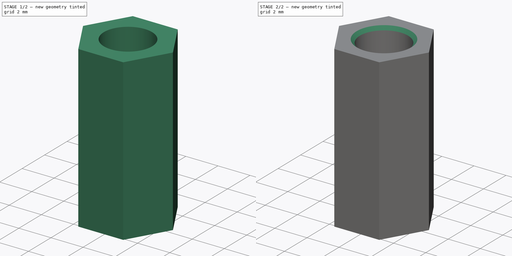
[diagram: build sequence overview — one tinted view per stage of 2, left to right]
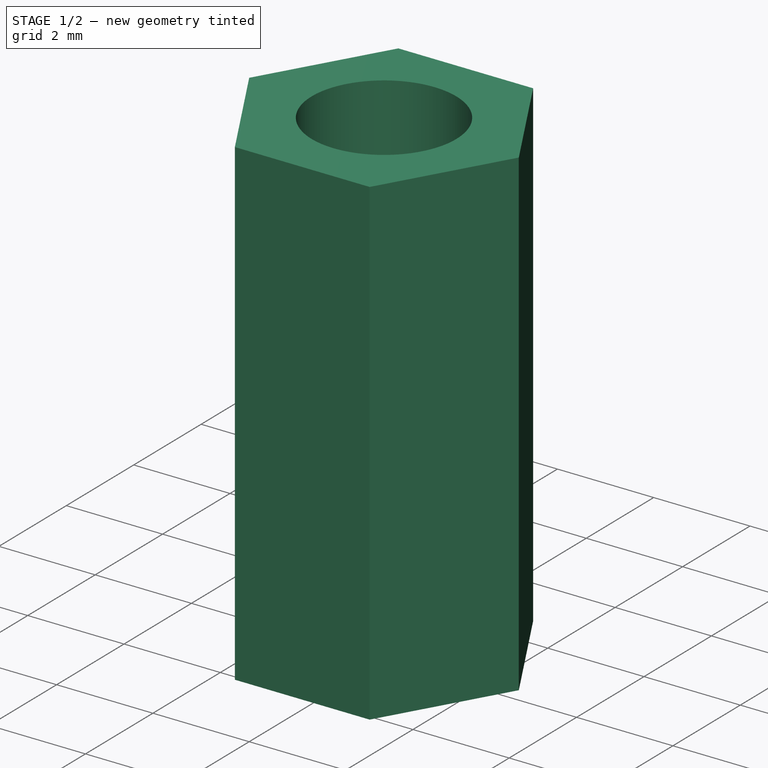
[diagram: stage 1 of 2 — iso view after this stage's code; geometry added in this stage tinted green]
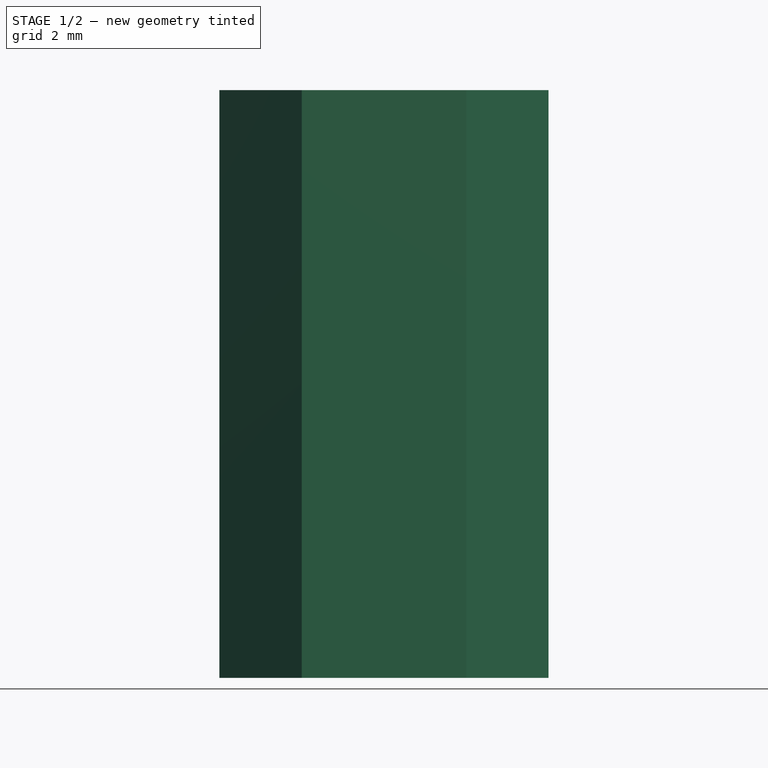
[diagram: stage 1 of 2 — front view after this stage's code; geometry added in this stage tinted green]
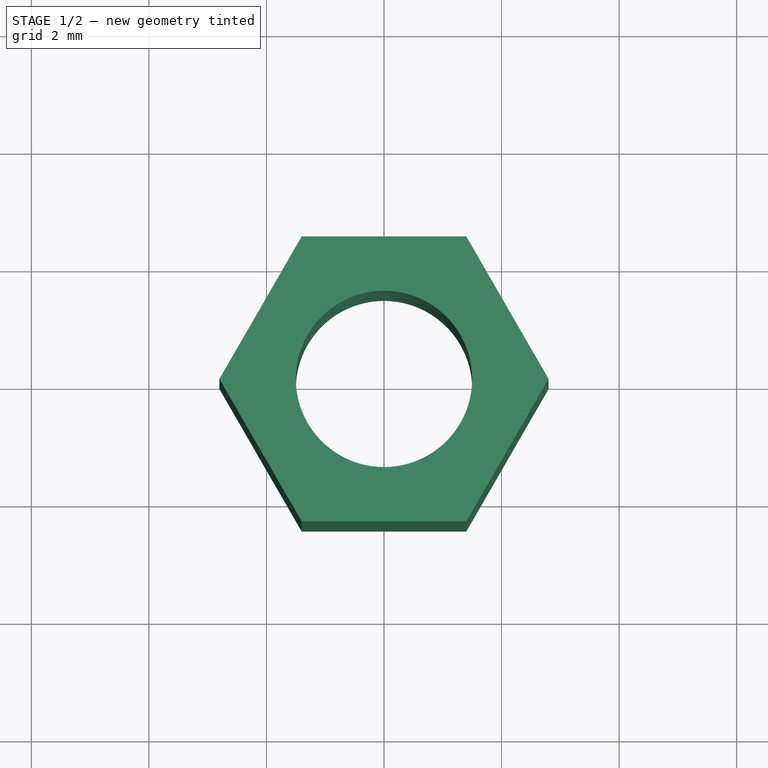
[diagram: stage 1 of 2 — top view after this stage's code; geometry added in this stage tinted green]
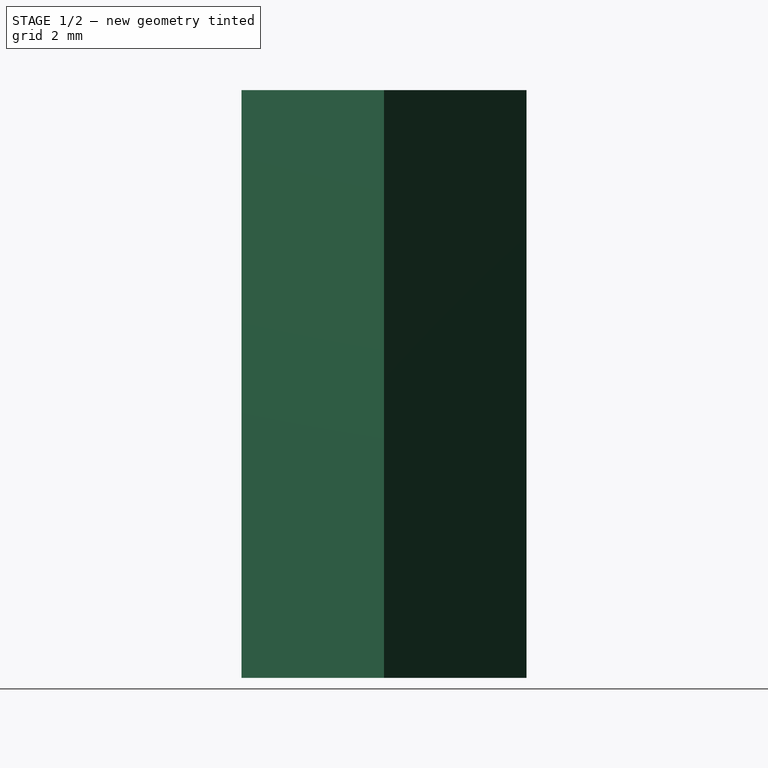
[diagram: stage 1 of 2 — right view after this stage's code; geometry added in this stage tinted green]
FCSTD DOCUMENT  (FreeCAD 0.18R4 (GitTag))
Label: hexStandoffFemaleFemale
License: All rights reserved
LicenseURL: http://en.wikipedia.org/wiki/All_rights_reserved
objects: Sketcher::SketchObject×2, PartDesign::Pad×1, PartDesign::Pocket×1, Spreadsheet::Sheet×1, PartDesign::Chamfer×1, PartDesign::Body×1, App::Part×1
note: 8 computed .brp shape members not serialized (recipe doc carries the construction recipe); baked Part::Feature solids carry a one-line shape summary decoded from their .brp

FEATURE [Sketcher::SketchObject] Sketch
  expr: Constraints[19] = Spreadsheet.B1
  sketch-geometry (7):
    g0: LineSegment StartX=2.8 StartY=0 StartZ=0 EndX=1.4 EndY=2.42487 EndZ=0
    g1: LineSegment StartX=1.4 StartY=2.42487 StartZ=0 EndX=-1.4 EndY=2.42487 EndZ=0
    g2: LineSegment StartX=-1.4 StartY=2.42487 StartZ=0 EndX=-2.8 EndY=-4e-16 EndZ=0
    g3: LineSegment StartX=-2.8 StartY=-4e-16 StartZ=0 EndX=-1.4 EndY=-2.42487 EndZ=0
    g4: LineSegment StartX=-1.4 StartY=-2.42487 StartZ=0 EndX=1.4 EndY=-2.42487 EndZ=0
    g5: LineSegment StartX=1.4 StartY=-2.42487 StartZ=0 EndX=2.8 EndY=0 EndZ=0
    g6: Circle [constr] CenterX=0 CenterY=0 CenterZ=0 NormalX=0 NormalY=0 NormalZ=1 AngleXU=0 Radius=2.8
  constraints (16):
    c: Coincident(g0,g1)
    c: Coincident(g1,g2)
    c: Coincident(g2,g3)
    c: Coincident(g3,g4)
    c: Coincident(g4,g5)
    c: Coincident(g5,g0)
    c: Equal(g0, g1-g5) x5
    c: PointOnObject(g0,g6)
    c: PointOnObject(g1,g6)
    c: PointOnObject(g2,g6)
    c: PointOnObject(g3,g6)
    c: PointOnObject(g4,g6)
    c: PointOnObject(g5,g6)
    c: Coincident(g6,g-1)
    c: PointOnObject(g5,g-1)
    c: Diameter(g6) = 5.6
FEATURE [PartDesign::Pad] Pad
  Length = 10
  Length2 = 100
  Profile = -> Sketch
  Type = 0
  expr: Length = Spreadsheet.B3
FEATURE [Sketcher::SketchObject] Sketch001
  MapMode = 5
  Placement = pos=(0,0,10) rot=(0,0,1;0rad)
  Support = -> [Pad]
  expr: Constraints[1] = Spreadsheet.B2
  sketch-geometry (1):
    g0: Circle CenterX=0 CenterY=0 CenterZ=0 NormalX=0 NormalY=0 NormalZ=1 AngleXU=0 Radius=1.5
  constraints (2):
    c: Coincident(g0,g-1)
    c: Diameter(g0) = 3
FEATURE [PartDesign::Pocket] Pocket
  BaseFeature = -> Pad
  Length = 5
  Length2 = 100
  Profile = -> Sketch001
  Type = 1
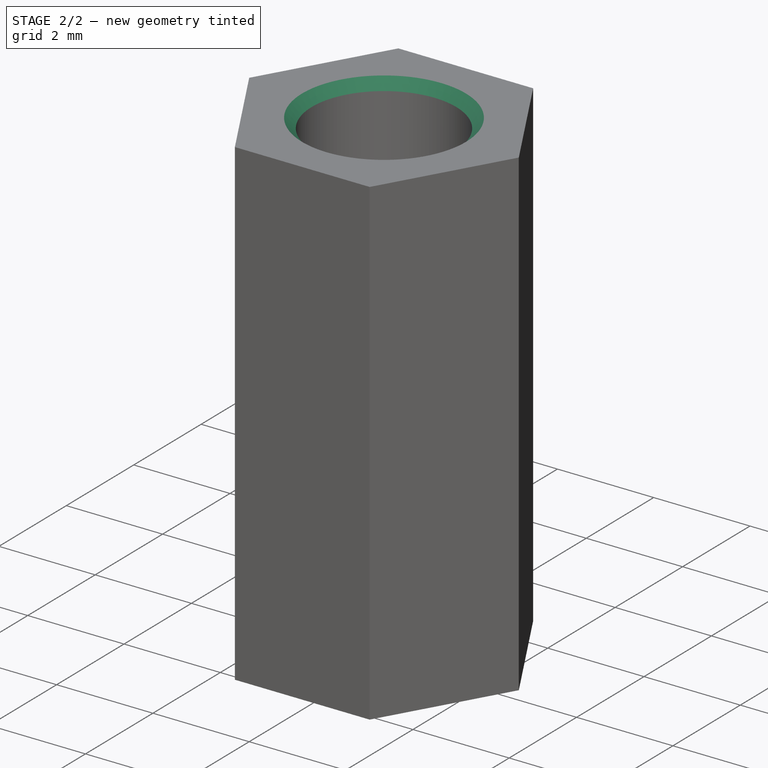
[diagram: stage 2 of 2 — iso view after this stage's code; geometry added in this stage tinted green]
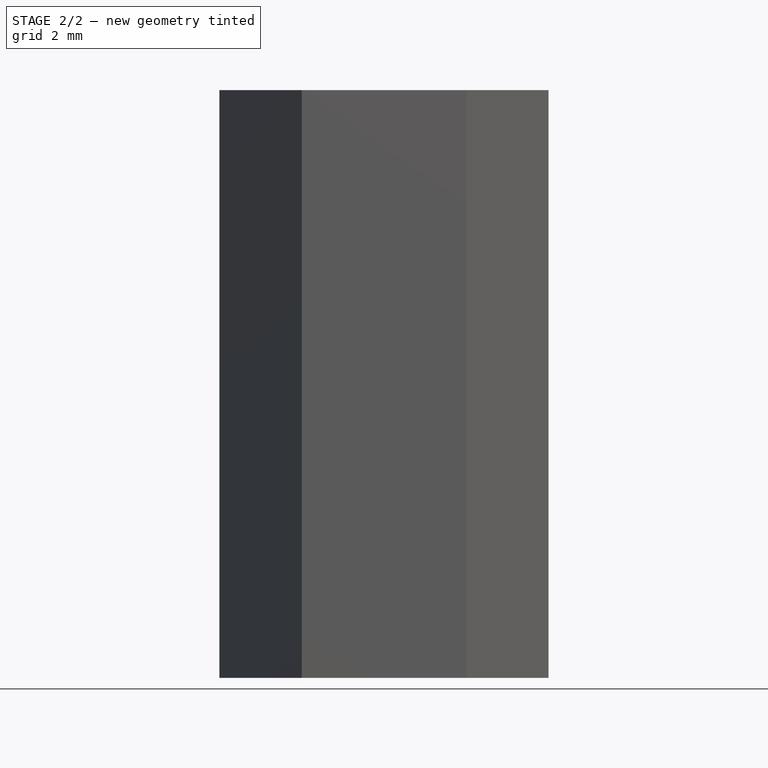
[diagram: stage 2 of 2 — front view after this stage's code; geometry added in this stage tinted green]
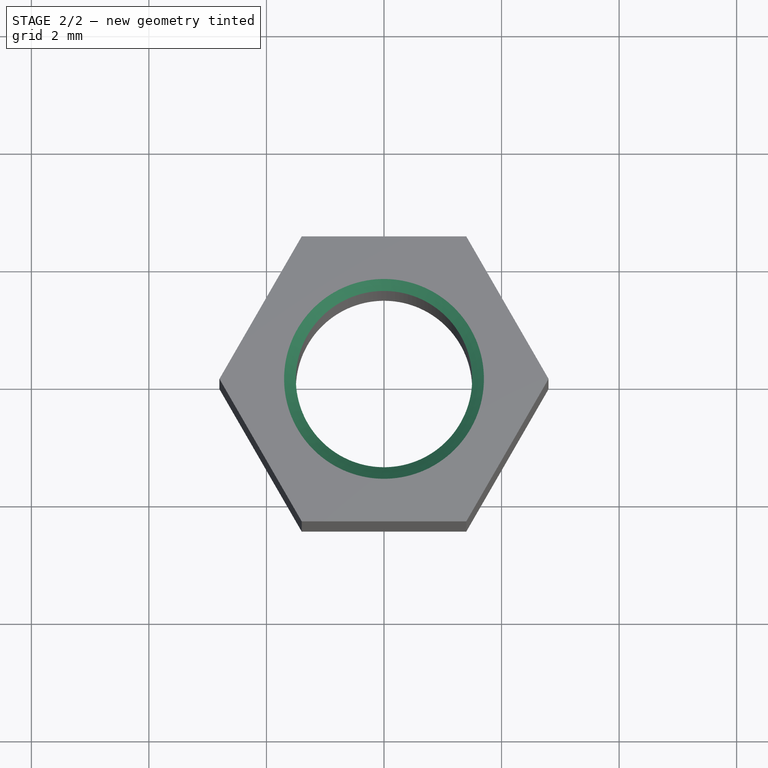
[diagram: stage 2 of 2 — top view after this stage's code; geometry added in this stage tinted green]
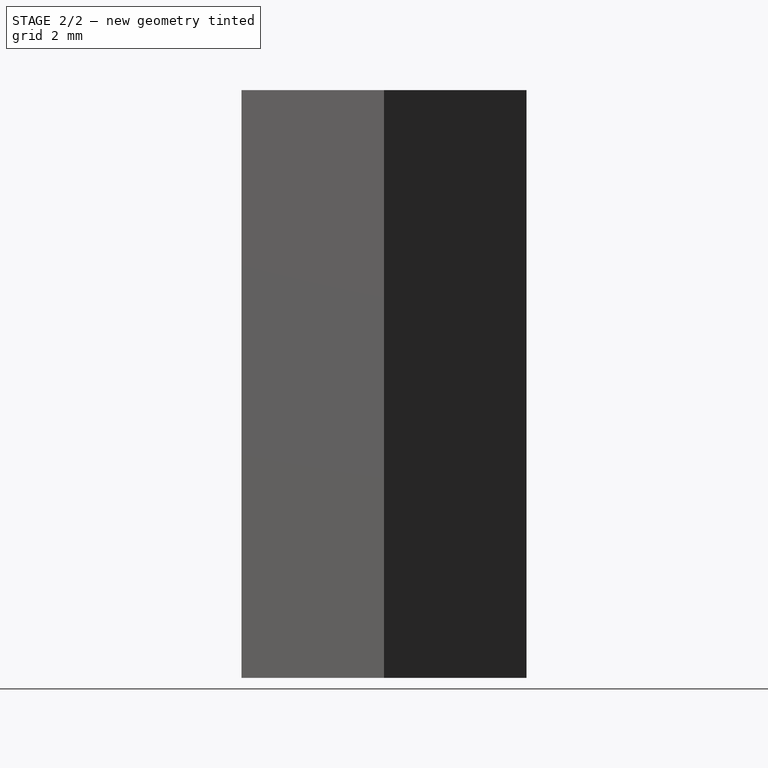
[diagram: stage 2 of 2 — right view after this stage's code; geometry added in this stage tinted green]
FEATURE [Spreadsheet::Sheet] Spreadsheet
  cells = A1=d1; B1=5.6; C1=mm; A2=d2; B2=3; C2=mm; A3=l; B3=10; C3=mm
FEATURE [PartDesign::Chamfer] Chamfer
  Base = -> Pocket [Edge18,Edge14]
  BaseFeature = -> Pocket
  Size = 0.2
FEATURE [PartDesign::Body] Body
  Group = -> [Sketch,Pad,Sketch001,Pocket,Chamfer]
  Origin = -> Origin001
  Tip = -> Chamfer
FEATURE [App::Part] Part
  Group = -> [Body,Spreadsheet]
  Origin = -> Origin
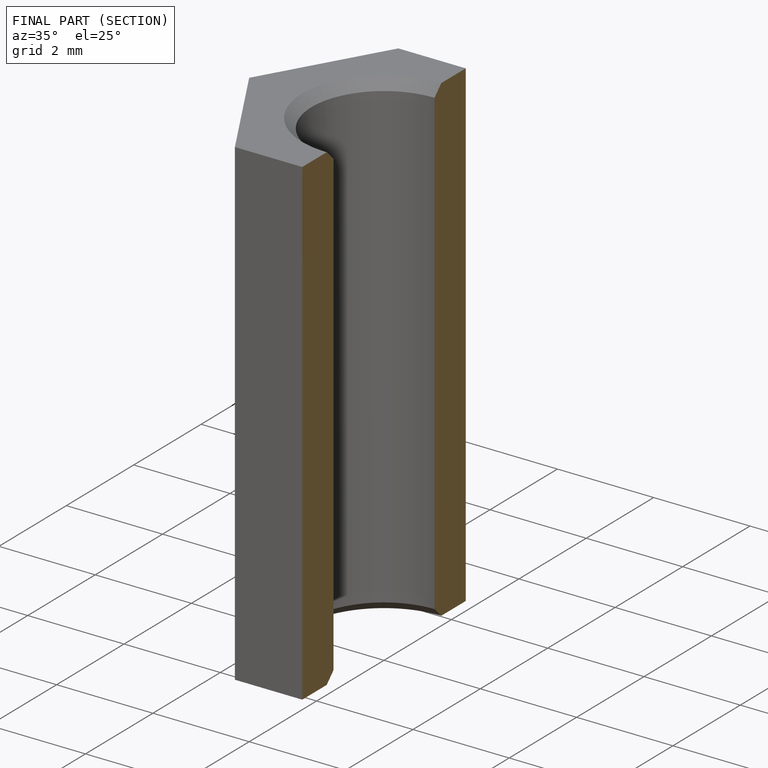
[diagram: finished part — half-section view (interior)]
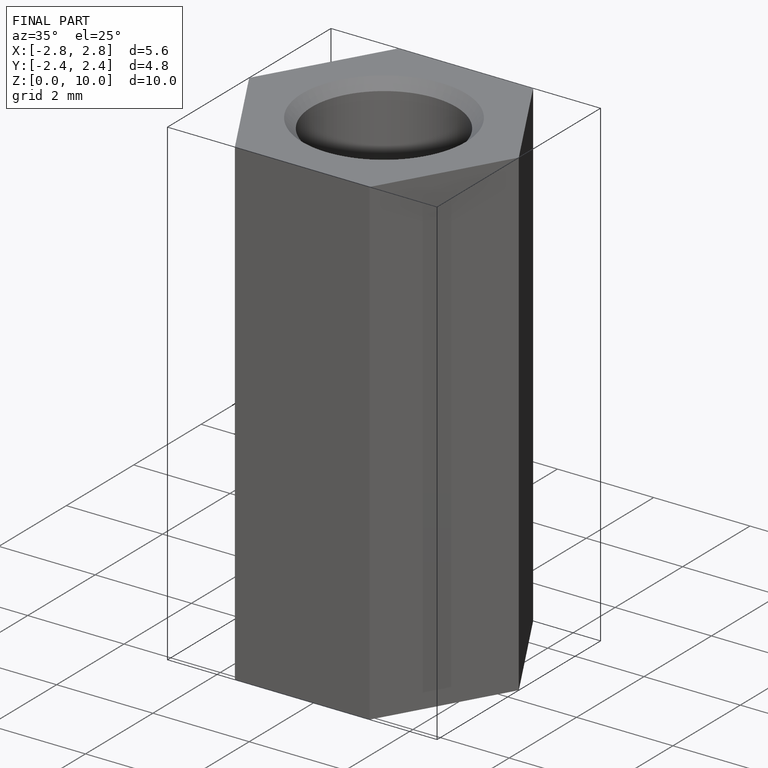
[diagram: finished part — iso view with bounding-box wireframe]
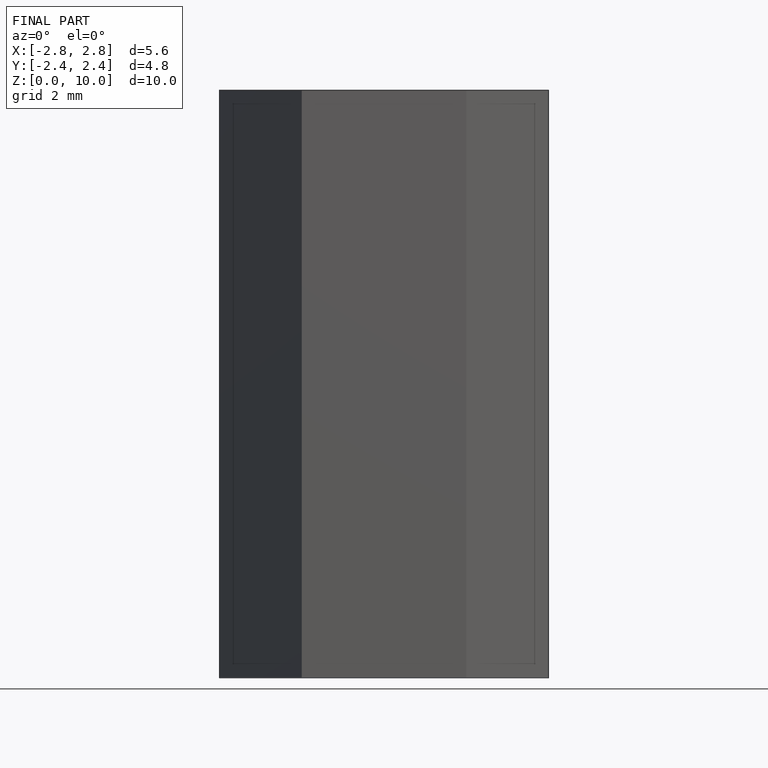
[diagram: finished part — front view with bounding-box wireframe]
